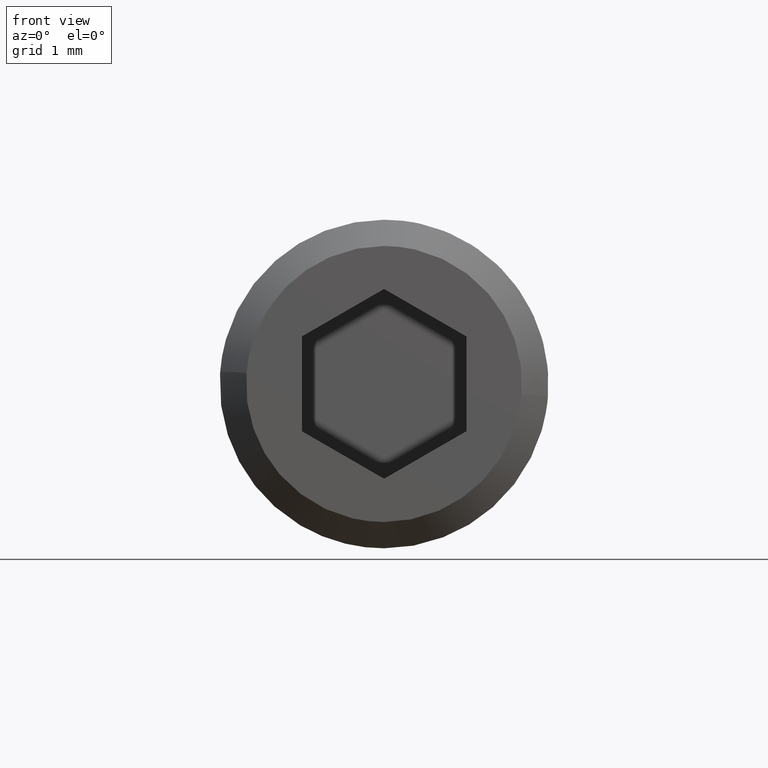
[diagram: clean part render]
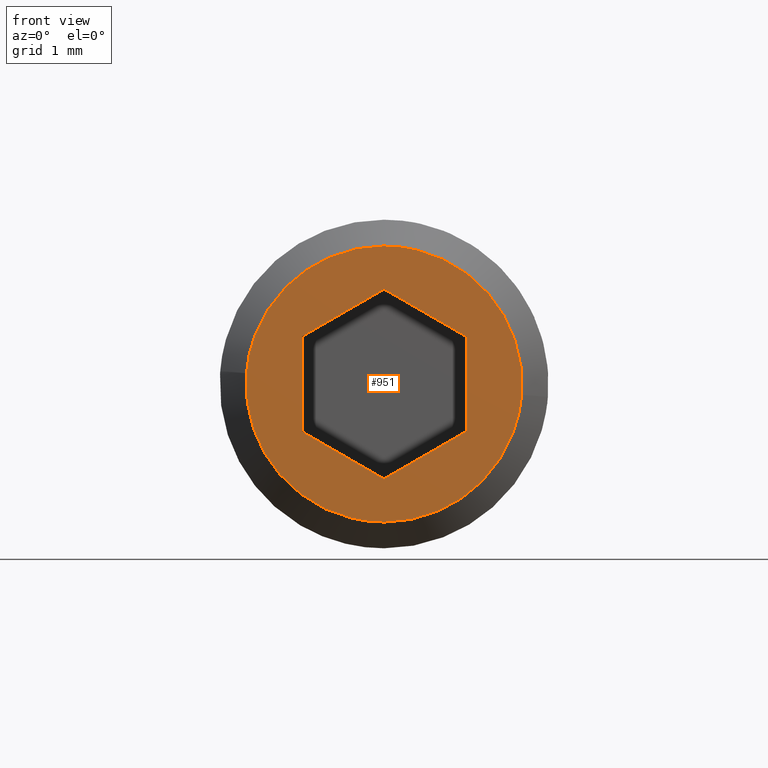
[diagram: same view with one face highlighted and labeled with its STEP entity id]
A machine part, front view. The second image highlights one B-rep face of the part: STEP entity #951.
In plain terms, the highlighted face is a freeform B-spline surface patch.
Its self-contained STEP definition (entity closure, byte-faithful):
#614=CARTESIAN_POINT('',(0.0,-7.650000000000000,-2.100000000000000));
#615=VERTEX_POINT('',#614);
#616=CARTESIAN_POINT('',(2.093526400840046,-7.649999999998801,-0.164764101037666));
#617=VERTEX_POINT('',#616);
#618=CARTESIAN_POINT('',(0.0,-7.650000000000000,-2.100000000000000));
#619=CARTESIAN_POINT('',(1.941220032465313,-7.650000000000000,-2.100000000000000));
#620=CARTESIAN_POINT('',(2.093526400840047,-7.649999999998802,-0.164764101037666));
#628=(BOUNDED_CURVE()B_SPLINE_CURVE(2,(#618,#619,#620),.UNSPECIFIED.,.F.,.U.)B_SPLINE_CURVE_WITH_KNOTS((3,3),(0.0,0.236331300631277),.UNSPECIFIED.)CURVE()GEOMETRIC_REPRESENTATION_ITEM()RATIONAL_B_SPLINE_CURVE((1.0,0.723120658606942,0.969723356168707))REPRESENTATION_ITEM(''));
#629=EDGE_CURVE('',#615,#617,#628,.T.);
#631=CARTESIAN_POINT('',(-2.093526400840046,-7.649999999998801,0.164764101037665));
#632=VERTEX_POINT('',#631);
#633=CARTESIAN_POINT('',(-2.093526400840047,-7.649999999998802,0.164764101037665));
#634=CARTESIAN_POINT('',(-2.100000000000001,-7.650000000000000,0.082509224725245));
#635=CARTESIAN_POINT('',(-2.100000000000000,-7.650000000000000,-5.143347E-016));
#636=CARTESIAN_POINT('',(-2.100000000000000,-7.650000000000000,-2.100000000000000));
#637=CARTESIAN_POINT('',(0.0,-7.650000000000000,-2.100000000000000));
#645=(BOUNDED_CURVE()B_SPLINE_CURVE(2,(#633,#634,#635,#636,#637),.UNSPECIFIED.,.F.,.U.)B_SPLINE_CURVE_WITH_KNOTS((3,2,3),(0.736331300631277,0.750000000000000,1.0),.UNSPECIFIED.)CURVE()GEOMETRIC_REPRESENTATION_ITEM()RATIONAL_B_SPLINE_CURVE((0.969723356168707,0.983986122579605,1.0,0.707106781186548,1.0))REPRESENTATION_ITEM(''));
#646=EDGE_CURVE('',#632,#615,#645,.T.);
#683=CARTESIAN_POINT('',(0.0,-7.650000000000000,2.100000000000000));
#684=VERTEX_POINT('',#683);
#685=CARTESIAN_POINT('',(2.093526400840046,-7.649999999998801,-0.164764101037666));
#686=CARTESIAN_POINT('',(2.100000000000001,-7.650000000000000,-0.082509224725246));
#687=CARTESIAN_POINT('',(2.100000000000000,-7.650000000000000,-5.143347E-016));
#688=CARTESIAN_POINT('',(2.100000000000000,-7.650000000000000,2.100000000000000));
#689=CARTESIAN_POINT('',(0.0,-7.650000000000000,2.100000000000000));
#697=(BOUNDED_CURVE()B_SPLINE_CURVE(2,(#685,#686,#687,#688,#689),.UNSPECIFIED.,.F.,.U.)B_SPLINE_CURVE_WITH_KNOTS((3,2,3),(0.236331300631277,0.250000000000000,0.500000000000000),.UNSPECIFIED.)CURVE()GEOMETRIC_REPRESENTATION_ITEM()RATIONAL_B_SPLINE_CURVE((0.969723356168706,0.983986122579605,1.0,0.707106781186548,1.0))REPRESENTATION_ITEM(''));
#698=EDGE_CURVE('',#617,#684,#697,.T.);
#704=CARTESIAN_POINT('',(0.0,-7.650000000000000,2.100000000000000));
#705=CARTESIAN_POINT('',(-1.941220032465302,-7.650000000000000,2.100000000000000));
#706=CARTESIAN_POINT('',(-2.093526400840046,-7.649999999998802,0.164764101037665));
#714=(BOUNDED_CURVE()B_SPLINE_CURVE(2,(#704,#705,#706),.UNSPECIFIED.,.F.,.U.)B_SPLINE_CURVE_WITH_KNOTS((3,3),(0.500000000000000,0.736331300631276),.UNSPECIFIED.)CURVE()GEOMETRIC_REPRESENTATION_ITEM()RATIONAL_B_SPLINE_CURVE((1.0,0.723120658606943,0.969723356168704))REPRESENTATION_ITEM(''));
#715=EDGE_CURVE('',#684,#632,#714,.T.);
#787=CARTESIAN_POINT('',(1.250000000000000,-7.650000000000000,0.721688000000000));
#788=VERTEX_POINT('',#787);
#789=CARTESIAN_POINT('',(0.0,-7.650000000000000,1.443376000000000));
#790=VERTEX_POINT('',#789);
#791=CARTESIAN_POINT('',(1.250000000000000,-7.650000000000000,0.721688000000000));
#792=CARTESIAN_POINT('',(0.0,-7.650000000000000,1.443376000000000));
#793=QUASI_UNIFORM_CURVE('',1,(#791,#792),.UNSPECIFIED.,.F.,.U.);
#794=EDGE_CURVE('',#788,#790,#793,.T.);
#815=CARTESIAN_POINT('',(1.250000000000000,-7.650000000000000,-0.721688000000000));
#816=VERTEX_POINT('',#815);
#817=CARTESIAN_POINT('',(1.250000000000000,-7.650000000000000,-0.721688000000000));
#818=CARTESIAN_POINT('',(1.250000000000000,-7.650000000000000,0.721688000000000));
#819=QUASI_UNIFORM_CURVE('',1,(#817,#818),.UNSPECIFIED.,.F.,.U.);
#820=EDGE_CURVE('',#816,#788,#819,.T.);
#837=CARTESIAN_POINT('',(0.0,-7.650000000000000,-1.443376000000000));
#838=VERTEX_POINT('',#837);
#839=CARTESIAN_POINT('',(0.0,-7.650000000000000,-1.443376000000000));
#840=CARTESIAN_POINT('',(1.250000000000000,-7.650000000000000,-0.721688000000000));
#841=QUASI_UNIFORM_CURVE('',1,(#839,#840),.UNSPECIFIED.,.F.,.U.);
#842=EDGE_CURVE('',#838,#816,#841,.T.);
#859=CARTESIAN_POINT('',(-1.250000000000000,-7.650000000000000,-0.721688000000000));
#860=VERTEX_POINT('',#859);
#861=CARTESIAN_POINT('',(-1.250000000000000,-7.650000000000000,-0.721688000000000));
#862=CARTESIAN_POINT('',(0.0,-7.650000000000000,-1.443376000000000));
#863=QUASI_UNIFORM_CURVE('',1,(#861,#862),.UNSPECIFIED.,.F.,.U.);
#864=EDGE_CURVE('',#860,#838,#863,.T.);
#881=CARTESIAN_POINT('',(-1.250000000000000,-7.650000000000000,0.721688000000000));
#882=VERTEX_POINT('',#881);
#883=CARTESIAN_POINT('',(-1.250000000000000,-7.650000000000000,0.721688000000000));
#884=CARTESIAN_POINT('',(-1.250000000000000,-7.650000000000000,-0.721688000000000));
#885=QUASI_UNIFORM_CURVE('',1,(#883,#884),.UNSPECIFIED.,.F.,.U.);
#886=EDGE_CURVE('',#882,#860,#885,.T.);
#903=CARTESIAN_POINT('',(0.0,-7.650000000000000,1.443376000000000));
#904=CARTESIAN_POINT('',(-1.250000000000000,-7.650000000000000,0.721688000000000));
#905=QUASI_UNIFORM_CURVE('',1,(#903,#904),.UNSPECIFIED.,.F.,.U.);
#906=EDGE_CURVE('',#790,#882,#905,.T.);
#932=CARTESIAN_POINT('',(-2.309148980726388,-7.650000000000000,-2.309789898001045));
#933=CARTESIAN_POINT('',(-2.309148980726388,-7.650000000000000,2.309789785348266));
#934=CARTESIAN_POINT('',(2.309149093379167,-7.650000000000000,-2.309789898001045));
#935=CARTESIAN_POINT('',(2.309149093379167,-7.650000000000000,2.309789785348266));
#936=B_SPLINE_SURFACE_WITH_KNOTS('',1,1,((#932,#934),(#933,#935)),.UNSPECIFIED.,.F.,.F.,.U.,(2,2),(2,2),(0.0,4.619579683349311),(0.0,4.618298074105555),.UNSPECIFIED.);
#937=ORIENTED_EDGE('',*,*,#629,.T.);
#938=ORIENTED_EDGE('',*,*,#698,.T.);
#939=ORIENTED_EDGE('',*,*,#715,.T.);
#940=ORIENTED_EDGE('',*,*,#646,.T.);
#941=EDGE_LOOP('',(#937,#938,#939,#940));
#942=FACE_OUTER_BOUND('',#941,.T.);
#943=ORIENTED_EDGE('',*,*,#886,.F.);
#944=ORIENTED_EDGE('',*,*,#906,.F.);
#945=ORIENTED_EDGE('',*,*,#794,.F.);
#946=ORIENTED_EDGE('',*,*,#820,.F.);
#947=ORIENTED_EDGE('',*,*,#842,.F.);
#948=ORIENTED_EDGE('',*,*,#864,.F.);
#949=EDGE_LOOP('',(#943,#944,#945,#946,#947,#948));
#950=FACE_BOUND('',#949,.T.);
#951=ADVANCED_FACE('',(#942,#950),#936,.F.);